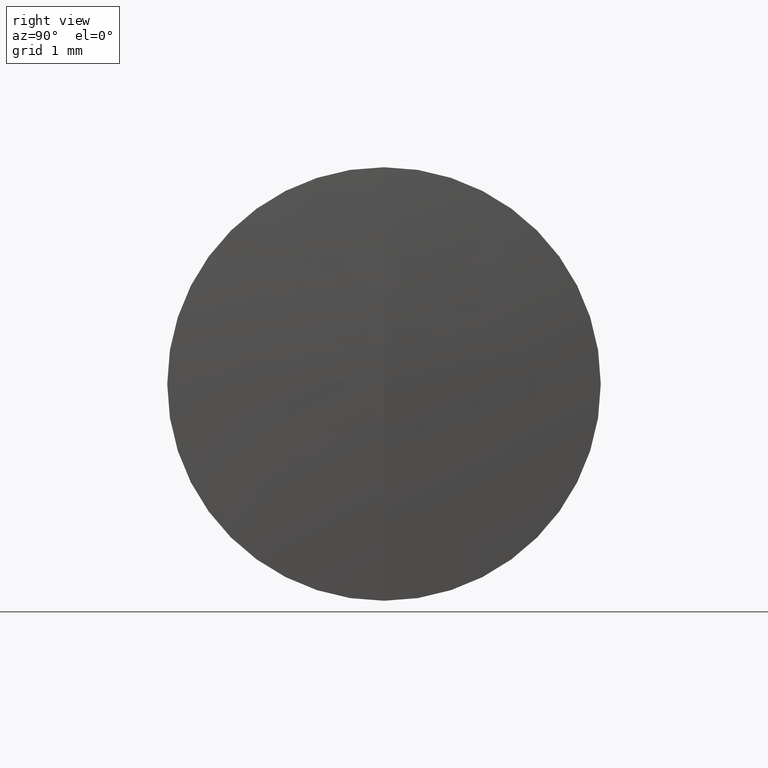
[diagram: clean part render]
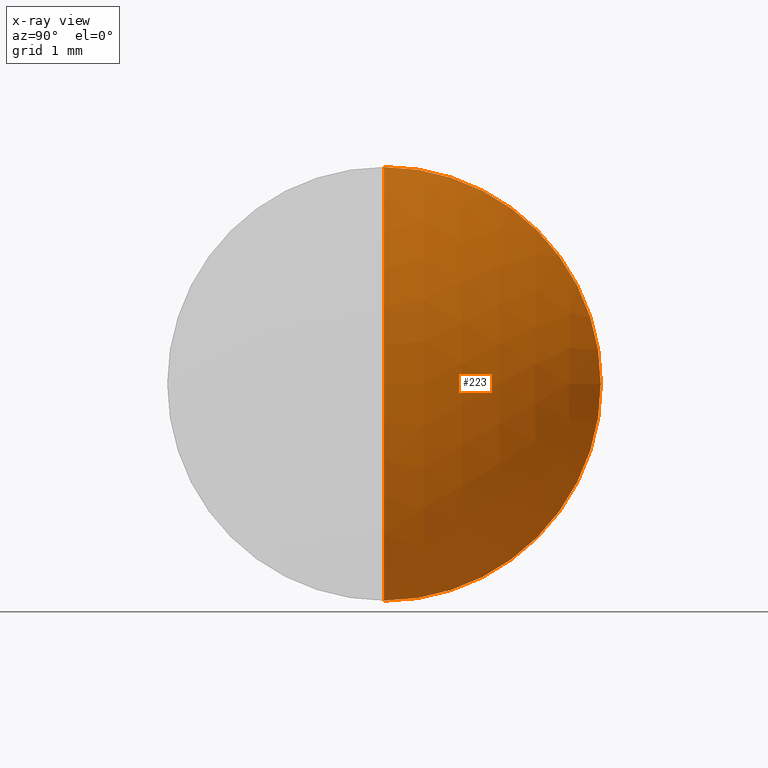
[diagram: x-ray — body ghosted, one internal face saturated and labeled with its STEP entity id]
A machine part, right view, then the same camera in x-ray: the body is ghosted and one INTERNAL B-rep face — a face not visible from any outside direction — is saturated and labeled: STEP entity #223.
In plain terms, the highlighted spherical surface has radius 3.9 mm.
Its self-contained STEP definition (entity closure, byte-faithful):
#23 = EDGE_CURVE ( 'NONE', #256, #25, #86, .T. ) ;
#25 = VERTEX_POINT ( 'NONE', #278 ) ;
#29 = AXIS2_PLACEMENT_3D ( 'NONE', #253, #333, #229 ) ;
#39 = AXIS2_PLACEMENT_3D ( 'NONE', #118, #252, #233 ) ;
#55 = CARTESIAN_POINT ( 'NONE',  ( 259.5321490580823800, 0.0000000000000000000, 2.388061258337346500E-016 ) ) ;
#80 = DIRECTION ( 'NONE',  ( 0.0000000000000000000, -1.224646799147353200E-016, 1.000000000000000000 ) ) ;
#86 = CIRCLE ( 'NONE', #29, 3.900000000000012800 ) ;
#93 = DIRECTION ( 'NONE',  ( -0.0000000000000000000, 1.000000000000000000, 1.224646799147353200E-016 ) ) ;
#108 = VERTEX_POINT ( 'NONE', #175 ) ;
#117 = EDGE_LOOP ( 'NONE', ( #343, #173, #166 ) ) ;
#118 = CARTESIAN_POINT ( 'NONE',  ( 258.6254749675014800, 0.0000000000000000000, 0.0000000000000000000 ) ) ;
#142 = EDGE_CURVE ( 'NONE', #256, #108, #231, .T. ) ;
#145 = FACE_OUTER_BOUND ( 'NONE', #117, .T. ) ;
#152 = DIRECTION ( 'NONE',  ( 0.0000000000000000000, 0.0000000000000000000, 1.000000000000000000 ) ) ;
#166 = ORIENTED_EDGE ( 'NONE', *, *, #215, .F. ) ;
#173 = ORIENTED_EDGE ( 'NONE', *, *, #142, .T. ) ;
#175 = CARTESIAN_POINT ( 'NONE',  ( 258.6254749675014800, 3.061616997868383100E-016, -2.499999999999999600 ) ) ;
#183 = SPHERICAL_SURFACE ( 'NONE', #187, 3.900000000000012800 ) ;
#187 = AXIS2_PLACEMENT_3D ( 'NONE', #272, #218, #152 ) ;
#215 = EDGE_CURVE ( 'NONE', #25, #108, #292, .T. ) ;
#218 = DIRECTION ( 'NONE',  ( 0.0000000000000000000, 1.000000000000000000, 0.0000000000000000000 ) ) ;
#223 = ADVANCED_FACE ( 'NONE', ( #145 ), #183, .T. ) ;
#229 = DIRECTION ( 'NONE',  ( 0.0000000000000000000, 0.0000000000000000000, -1.000000000000000000 ) ) ;
#231 = CIRCLE ( 'NONE', #318, 3.900000000000012800 ) ;
#233 = DIRECTION ( 'NONE',  ( 0.0000000000000000000, 0.0000000000000000000, 1.000000000000000000 ) ) ;
#252 = DIRECTION ( 'NONE',  ( -1.000000000000000000, -0.0000000000000000000, -0.0000000000000000000 ) ) ;
#253 = CARTESIAN_POINT ( 'NONE',  ( 255.6321490580823500, 0.0000000000000000000, 0.0000000000000000000 ) ) ;
#256 = VERTEX_POINT ( 'NONE', #55 ) ;
#259 = CARTESIAN_POINT ( 'NONE',  ( 255.6321490580823500, 0.0000000000000000000, 0.0000000000000000000 ) ) ;
#272 = CARTESIAN_POINT ( 'NONE',  ( 255.6321490580823500, 0.0000000000000000000, 0.0000000000000000000 ) ) ;
#278 = CARTESIAN_POINT ( 'NONE',  ( 258.6254749675014800, 0.0000000000000000000, 2.499999999999999600 ) ) ;
#292 = CIRCLE ( 'NONE', #39, 2.499999999999999600 ) ;
#318 = AXIS2_PLACEMENT_3D ( 'NONE', #259, #93, #80 ) ;
#333 = DIRECTION ( 'NONE',  ( 0.0000000000000000000, -1.000000000000000000, 0.0000000000000000000 ) ) ;
#343 = ORIENTED_EDGE ( 'NONE', *, *, #23, .F. ) ;